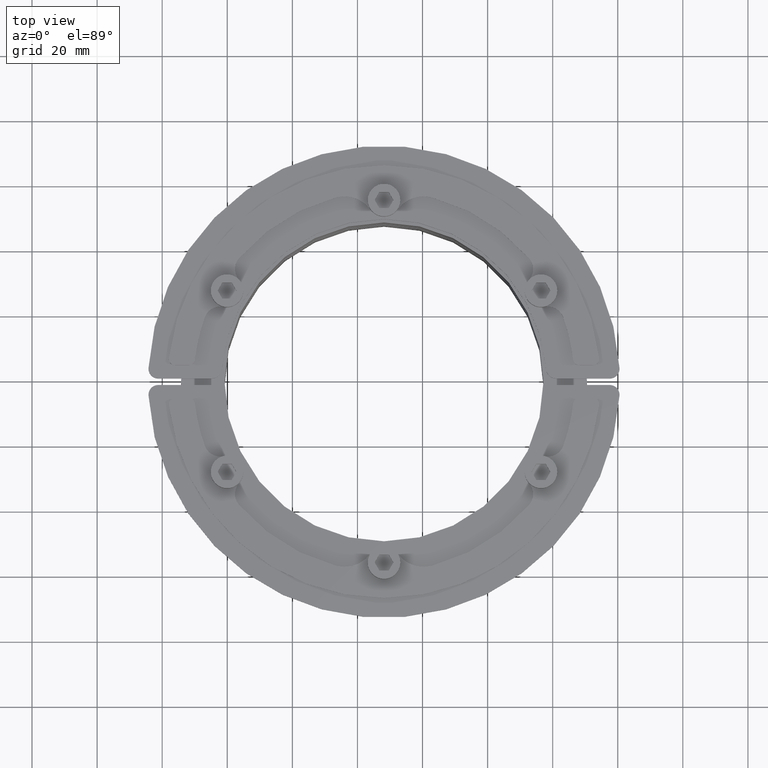
[diagram: clean part render]
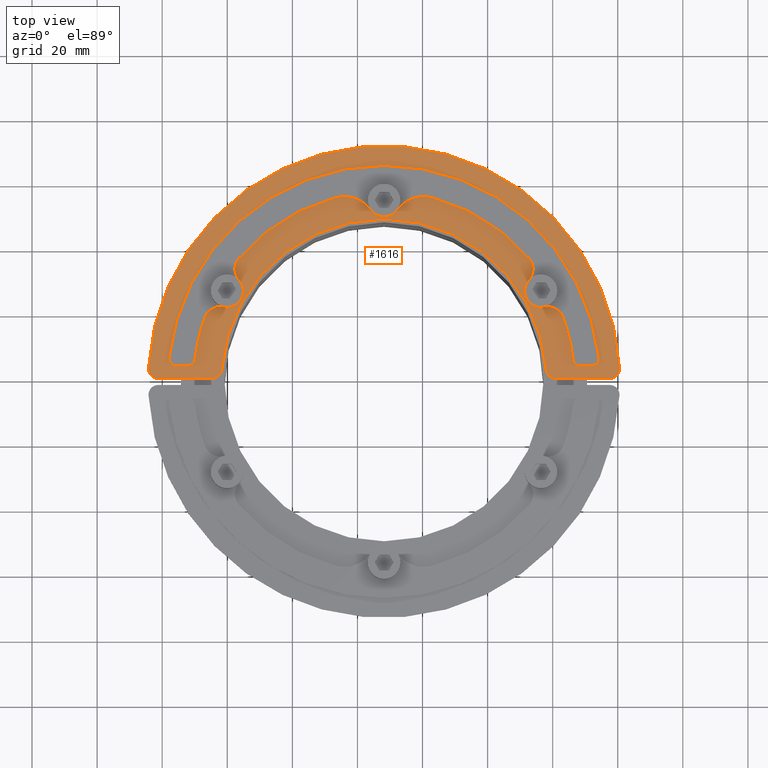
[diagram: same view with one face highlighted and labeled with its STEP entity id]
A machine part, top view. The second image highlights one B-rep face of the part: STEP entity #1616.
In plain terms, the highlighted planar face has unit normal (0, 0, 1).
Its self-contained STEP definition (entity closure, byte-faithful):
#152=CARTESIAN_POINT('',(-92.651256792387585,-23.695328694911552,1.250000000000000));
#153=VERTEX_POINT('',#152);
#162=CARTESIAN_POINT('',(-92.646283983996057,-23.522666824407956,1.250000000000000));
#163=VERTEX_POINT('',#162);
#164=CARTESIAN_POINT('',(-89.651256792387585,-23.695328694911552,1.250000000000000));
#165=DIRECTION('',(0.0,0.0,-1.0));
#166=DIRECTION('',(1.0,0.0,0.0));
#167=AXIS2_PLACEMENT_3D('',#164,#165,#166);
#168=CIRCLE('',#167,3.0);
#169=EDGE_CURVE('',#153,#163,#168,.T.);
#196=CARTESIAN_POINT('',(52.118336418805484,-23.695328694911552,1.250000000000000));
#197=VERTEX_POINT('',#196);
#213=CARTESIAN_POINT('',(52.113363610413984,-23.522666824407956,1.250000000000000));
#214=VERTEX_POINT('',#213);
#221=CARTESIAN_POINT('',(49.118336418805484,-23.695328694911552,1.250000000000000));
#222=DIRECTION('',(0.0,0.0,-1.0));
#223=DIRECTION('',(1.0,0.0,0.0));
#224=AXIS2_PLACEMENT_3D('',#221,#222,#223);
#225=CIRCLE('',#224,3.0);
#226=EDGE_CURVE('',#214,#197,#225,.T.);
#236=CARTESIAN_POINT('',(45.852569749726221,-20.695328694911503,1.250000000000000));
#237=VERTEX_POINT('',#236);
#246=CARTESIAN_POINT('',(45.840756724501929,-20.478274431345774,1.250000000000000));
#247=VERTEX_POINT('',#246);
#248=CARTESIAN_POINT('',(43.852569749726158,-20.695328694911503,1.250000000000000));
#249=DIRECTION('',(0.0,0.0,-1.0));
#250=DIRECTION('',(1.0,0.0,0.0));
#251=AXIS2_PLACEMENT_3D('',#248,#249,#250);
#252=CIRCLE('',#251,2.000000000000065);
#253=EDGE_CURVE('',#247,#237,#252,.T.);
#280=CARTESIAN_POINT('',(-86.385490123308287,-20.695328694911503,1.250000000000000));
#281=VERTEX_POINT('',#280);
#297=CARTESIAN_POINT('',(-86.373677098084059,-20.478274431345660,1.250000000000000));
#298=VERTEX_POINT('',#297);
#305=CARTESIAN_POINT('',(-84.385490123308287,-20.695328694911503,1.250000000000000));
#306=DIRECTION('',(0.0,0.0,-1.0));
#307=DIRECTION('',(1.0,0.0,0.0));
#308=AXIS2_PLACEMENT_3D('',#305,#306,#307);
#309=CIRCLE('',#308,2.0);
#310=EDGE_CURVE('',#281,#298,#309,.T.);
#320=CARTESIAN_POINT('',(-63.505050148563683,0.158476372816826,1.250000000000000));
#321=VERTEX_POINT('',#320);
#330=CARTESIAN_POINT('',(-64.800906526783947,3.516946266865139,1.250000000000000));
#331=VERTEX_POINT('',#330);
#332=CARTESIAN_POINT('',(-68.505050148563683,0.158476372816827,1.250000000000000));
#333=DIRECTION('',(0.0,0.0,-1.0));
#334=DIRECTION('',(1.0,0.0,0.0));
#335=AXIS2_PLACEMENT_3D('',#332,#333,#334);
#336=CIRCLE('',#335,5.0);
#337=EDGE_CURVE('',#331,#321,#336,.T.);
#364=CARTESIAN_POINT('',(-66.096762905004212,6.875416160913339,1.250000000000000));
#365=VERTEX_POINT('',#364);
#380=CARTESIAN_POINT('',(-61.096762905004212,6.875416160913337,1.250000000000000));
#381=DIRECTION('',(0.0,0.0,1.0));
#382=DIRECTION('',(1.0,0.0,0.0));
#383=AXIS2_PLACEMENT_3D('',#380,#381,#382);
#384=CIRCLE('',#383,5.0);
#385=EDGE_CURVE('',#365,#331,#384,.T.);
#395=CARTESIAN_POINT('',(25.566235545238428,6.872589657528909,1.250000000000000));
#396=VERTEX_POINT('',#395);
#405=CARTESIAN_POINT('',(24.268210287022143,3.511729200563414,1.250000000000000));
#406=VERTEX_POINT('',#405);
#407=CARTESIAN_POINT('',(20.566235545238428,6.872589657528911,1.250000000000000));
#408=DIRECTION('',(0.0,0.0,1.0));
#409=DIRECTION('',(1.0,0.0,0.0));
#410=AXIS2_PLACEMENT_3D('',#407,#408,#409);
#411=CIRCLE('',#410,5.0);
#412=EDGE_CURVE('',#406,#396,#411,.T.);
#439=CARTESIAN_POINT('',(22.970185028806085,0.150868743597917,1.250000000000000));
#440=VERTEX_POINT('',#439);
#455=CARTESIAN_POINT('',(27.970185028806085,0.150868743597917,1.250000000000000));
#456=DIRECTION('',(0.0,0.0,-1.0));
#457=DIRECTION('',(1.0,0.0,0.0));
#458=AXIS2_PLACEMENT_3D('',#455,#456,#457);
#459=CIRCLE('',#458,5.0);
#460=EDGE_CURVE('',#440,#406,#459,.T.);
#679=CARTESIAN_POINT('',(29.029295351828281,-4.735672499824441,1.250000000000000));
#680=VERTEX_POINT('',#679);
#687=CARTESIAN_POINT('',(34.794467904910320,-7.933137579539798,1.250000000000000));
#688=VERTEX_POINT('',#687);
#689=CARTESIAN_POINT('',(30.088405674850478,-9.622213743246798,1.250000000000000));
#690=DIRECTION('',(0.0,0.0,1.0));
#691=DIRECTION('',(1.0,0.0,0.0));
#692=AXIS2_PLACEMENT_3D('',#689,#690,#691);
#693=CIRCLE('',#692,5.0);
#694=EDGE_CURVE('',#688,#680,#693,.T.);
#711=CARTESIAN_POINT('',(27.970185028806085,0.150868743597917,1.250000000000000));
#712=DIRECTION('',(0.0,0.0,-1.0));
#713=DIRECTION('',(1.0,0.0,0.0));
#714=AXIS2_PLACEMENT_3D('',#711,#712,#713);
#715=CIRCLE('',#714,5.0);
#716=EDGE_CURVE('',#680,#440,#715,.T.);
#744=CARTESIAN_POINT('',(24.381452234750654,10.104326282327852,1.250000000000000));
#745=VERTEX_POINT('',#744);
#752=CARTESIAN_POINT('',(20.566235545238428,6.872589657528911,1.250000000000000));
#753=DIRECTION('',(0.0,0.0,1.0));
#754=DIRECTION('',(1.0,0.0,0.0));
#755=AXIS2_PLACEMENT_3D('',#752,#753,#754);
#756=CIRCLE('',#755,5.0);
#757=EDGE_CURVE('',#396,#745,#756,.T.);
#776=CARTESIAN_POINT('',(-5.580428210819731,28.931259272232857,1.250000000000000));
#777=VERTEX_POINT('',#776);
#784=CARTESIAN_POINT('',(-20.266460186791065,-27.695328694911503,1.250000000000000));
#785=DIRECTION('',(0.0,0.0,1.0));
#786=DIRECTION('',(1.0,0.0,0.0));
#787=AXIS2_PLACEMENT_3D('',#784,#785,#786);
#788=CIRCLE('',#787,58.500000000000000);
#789=EDGE_CURVE('',#745,#777,#788,.T.);
#809=CARTESIAN_POINT('',(-16.211671151066881,25.086947751849145,1.250000000000000));
#810=VERTEX_POINT('',#809);
#817=CARTESIAN_POINT('',(-8.090861027225072,19.251500645370577,1.250000000000000));
#818=DIRECTION('',(0.0,0.0,1.0));
#819=DIRECTION('',(1.0,0.0,0.0));
#820=AXIS2_PLACEMENT_3D('',#817,#818,#819);
#821=CIRCLE('',#820,10.0);
#822=EDGE_CURVE('',#777,#810,#821,.T.);
#842=CARTESIAN_POINT('',(-24.331892825683568,25.086129019755042,1.250000000000000));
#843=VERTEX_POINT('',#842);
#850=CARTESIAN_POINT('',(-20.272076212987727,28.004671305088429,1.250000000000000));
#851=DIRECTION('',(0.0,0.0,-1.0));
#852=DIRECTION('',(1.0,0.0,0.0));
#853=AXIS2_PLACEMENT_3D('',#850,#851,#852);
#854=CIRCLE('',#853,5.0);
#855=EDGE_CURVE('',#810,#843,#854,.T.);
#875=CARTESIAN_POINT('',(-34.963910765360325,28.928296643727087,1.250000000000000));
#876=VERTEX_POINT('',#875);
#883=CARTESIAN_POINT('',(-32.451526051075021,19.249044449088039,1.250000000000000));
#884=DIRECTION('',(0.0,0.0,1.0));
#885=DIRECTION('',(1.0,0.0,0.0));
#886=AXIS2_PLACEMENT_3D('',#883,#884,#885);
#887=CIRCLE('',#886,10.0);
#888=EDGE_CURVE('',#843,#876,#887,.T.);
#908=CARTESIAN_POINT('',(-64.913601466282458,10.105237115260357,1.250000000000000));
#909=VERTEX_POINT('',#908);
#916=CARTESIAN_POINT('',(-20.266460186791065,-27.695328694911503,1.250000000000000));
#917=DIRECTION('',(0.0,0.0,1.0));
#918=DIRECTION('',(1.0,0.0,0.0));
#919=AXIS2_PLACEMENT_3D('',#916,#917,#918);
#920=CIRCLE('',#919,58.500000000000000);
#921=EDGE_CURVE('',#876,#909,#920,.T.);
#933=CARTESIAN_POINT('',(-61.096762905004212,6.875416160913337,1.250000000000000));
#934=DIRECTION('',(0.0,0.0,1.0));
#935=DIRECTION('',(1.0,0.0,0.0));
#936=AXIS2_PLACEMENT_3D('',#933,#934,#935);
#937=CIRCLE('',#936,5.0);
#938=EDGE_CURVE('',#909,#365,#937,.T.);
#966=CARTESIAN_POINT('',(-69.561991174850746,-4.728534540507448,1.250000000000000));
#967=VERTEX_POINT('',#966);
#974=CARTESIAN_POINT('',(-68.505050148563683,0.158476372816827,1.250000000000000));
#975=DIRECTION('',(0.0,0.0,-1.0));
#976=DIRECTION('',(1.0,0.0,0.0));
#977=AXIS2_PLACEMENT_3D('',#974,#975,#976);
#978=CIRCLE('',#977,5.0);
#979=EDGE_CURVE('',#321,#967,#978,.T.);
#998=CARTESIAN_POINT('',(-75.324770707151529,-7.925846085506587,1.250000000000000));
#999=VERTEX_POINT('',#998);
#1006=CARTESIAN_POINT('',(-70.618932201137810,-9.615545453831837,1.250000000000000));
#1007=DIRECTION('',(0.0,0.0,1.0));
#1008=DIRECTION('',(1.0,0.0,0.0));
#1009=AXIS2_PLACEMENT_3D('',#1006,#1007,#1008);
#1010=CIRCLE('',#1009,5.0);
#1011=EDGE_CURVE('',#967,#999,#1010,.T.);
#1031=CARTESIAN_POINT('',(-78.373569228341140,-20.926733653589288,1.250000000000000));
#1032=VERTEX_POINT('',#1031);
#1039=CARTESIAN_POINT('',(-20.266460186791065,-27.695328694911503,1.250000000000000));
#1040=DIRECTION('',(0.0,0.0,1.0));
#1041=DIRECTION('',(1.0,0.0,0.0));
#1042=AXIS2_PLACEMENT_3D('',#1039,#1040,#1041);
#1043=CIRCLE('',#1042,58.500000000000000);
#1044=EDGE_CURVE('',#999,#1032,#1043,.T.);
#1064=CARTESIAN_POINT('',(-80.360137058821479,-22.695328694911503,1.250000000000000));
#1065=VERTEX_POINT('',#1064);
#1072=CARTESIAN_POINT('',(-80.360137058821479,-20.695328694911503,1.250000000000000));
#1073=DIRECTION('',(0.0,0.0,-1.0));
#1074=DIRECTION('',(1.0,0.0,0.0));
#1075=AXIS2_PLACEMENT_3D('',#1072,#1073,#1074);
#1076=CIRCLE('',#1075,2.0);
#1077=EDGE_CURVE('',#1032,#1065,#1076,.T.);
#1096=CARTESIAN_POINT('',(-84.385490123308287,-22.695328694911503,1.250000000000000));
#1097=VERTEX_POINT('',#1096);
#1104=CARTESIAN_POINT('',(-80.360137058821479,-22.695328694911503,1.250000000000000));
#1105=DIRECTION('',(-1.0,0.0,0.0));
#1106=VECTOR('',#1105,4.025353064486808);
#1107=LINE('',#1104,#1106);
#1108=EDGE_CURVE('',#1065,#1097,#1107,.T.);
#1120=CARTESIAN_POINT('',(-84.385490123308287,-20.695328694911503,1.250000000000000));
#1121=DIRECTION('',(0.0,0.0,-1.0));
#1122=DIRECTION('',(1.0,0.0,0.0));
#1123=AXIS2_PLACEMENT_3D('',#1120,#1121,#1122);
#1124=CIRCLE('',#1123,2.0);
#1125=EDGE_CURVE('',#1097,#281,#1124,.T.);
#1151=CARTESIAN_POINT('',(-20.266460186791065,-27.695328694911503,1.250000000000000));
#1152=DIRECTION('',(0.0,0.0,-1.0));
#1153=DIRECTION('',(1.0,0.0,0.0));
#1154=AXIS2_PLACEMENT_3D('',#1151,#1152,#1153);
#1155=CIRCLE('',#1154,66.500000000000000);
#1156=EDGE_CURVE('',#298,#247,#1155,.T.);
#1177=CARTESIAN_POINT('',(43.852569749726158,-22.695328694911503,1.250000000000000));
#1178=VERTEX_POINT('',#1177);
#1185=CARTESIAN_POINT('',(43.852569749726158,-20.695328694911503,1.250000000000000));
#1186=DIRECTION('',(0.0,0.0,-1.0));
#1187=DIRECTION('',(1.0,0.0,0.0));
#1188=AXIS2_PLACEMENT_3D('',#1185,#1186,#1187);
#1189=CIRCLE('',#1188,2.000000000000065);
#1190=EDGE_CURVE('',#237,#1178,#1189,.T.);
#1208=CARTESIAN_POINT('',(39.827216685239350,-22.695328694911503,1.250000000000000));
#1209=VERTEX_POINT('',#1208);
#1216=CARTESIAN_POINT('',(43.852569749726158,-22.695328694911503,1.250000000000000));
#1217=DIRECTION('',(-1.0,0.0,0.0));
#1218=VECTOR('',#1217,4.025353064486808);
#1219=LINE('',#1216,#1218);
#1220=EDGE_CURVE('',#1178,#1209,#1219,.T.);
#1240=CARTESIAN_POINT('',(37.840648854759124,-20.926733653589288,1.250000000000000));
#1241=VERTEX_POINT('',#1240);
#1248=CARTESIAN_POINT('',(39.827216685239350,-20.695328694911503,1.250000000000000));
#1249=DIRECTION('',(0.0,0.0,-1.0));
#1250=DIRECTION('',(1.0,0.0,0.0));
#1251=AXIS2_PLACEMENT_3D('',#1248,#1249,#1250);
#1252=CIRCLE('',#1251,2.0);
#1253=EDGE_CURVE('',#1209,#1241,#1252,.T.);
#1272=CARTESIAN_POINT('',(-20.266460186791065,-27.695328694911503,1.250000000000000));
#1273=DIRECTION('',(0.0,0.0,1.0));
#1274=DIRECTION('',(1.0,0.0,0.0));
#1275=AXIS2_PLACEMENT_3D('',#1272,#1273,#1274);
#1276=CIRCLE('',#1275,58.500000000000000);
#1277=EDGE_CURVE('',#1241,#688,#1276,.T.);
#1334=CARTESIAN_POINT('',(-20.266460186791051,-27.695328694911552,1.250000000000000));
#1335=DIRECTION('',(0.0,0.0,-1.0));
#1336=DIRECTION('',(1.0,0.0,0.0));
#1337=AXIS2_PLACEMENT_3D('',#1334,#1335,#1336);
#1338=CIRCLE('',#1337,72.500000000000000);
#1339=EDGE_CURVE('',#163,#214,#1338,.T.);
#1359=CARTESIAN_POINT('',(49.118336418805484,-26.695328694911552,1.250000000000000));
#1360=VERTEX_POINT('',#1359);
#1361=CARTESIAN_POINT('',(49.118336418805484,-23.695328694911552,1.250000000000000));
#1362=DIRECTION('',(0.0,0.0,-1.0));
#1363=DIRECTION('',(1.0,0.0,0.0));
#1364=AXIS2_PLACEMENT_3D('',#1361,#1362,#1363);
#1365=CIRCLE('',#1364,3.0);
#1366=EDGE_CURVE('',#197,#1360,#1365,.T.);
#1391=CARTESIAN_POINT('',(32.582380860104195,-26.695328694911552,1.250000000000000));
#1392=VERTEX_POINT('',#1391);
#1393=CARTESIAN_POINT('',(49.118336418805484,-26.695328694911552,1.250000000000000));
#1394=DIRECTION('',(-1.0,0.0,0.0));
#1395=VECTOR('',#1394,16.535955558701289);
#1396=LINE('',#1393,#1395);
#1397=EDGE_CURVE('',#1360,#1392,#1396,.T.);
#1422=CARTESIAN_POINT('',(29.590937027261077,-23.921743789251174,1.250000000000000));
#1423=VERTEX_POINT('',#1422);
#1424=CARTESIAN_POINT('',(32.582380860104195,-23.695328694911552,1.250000000000000));
#1425=DIRECTION('',(0.0,0.0,-1.0));
#1426=DIRECTION('',(1.0,0.0,0.0));
#1427=AXIS2_PLACEMENT_3D('',#1424,#1425,#1426);
#1428=CIRCLE('',#1427,3.0);
#1429=EDGE_CURVE('',#1392,#1423,#1428,.T.);
#1455=CARTESIAN_POINT('',(-70.123857400843178,-23.921743789251174,1.250000000000000));
#1456=VERTEX_POINT('',#1455);
#1457=CARTESIAN_POINT('',(-20.266460186791051,-27.695328694911552,1.250000000000000));
#1458=DIRECTION('',(0.0,0.0,1.0));
#1459=DIRECTION('',(1.0,0.0,0.0));
#1460=AXIS2_PLACEMENT_3D('',#1457,#1458,#1459);
#1461=CIRCLE('',#1460,50.0);
#1462=EDGE_CURVE('',#1423,#1456,#1461,.T.);
#1488=CARTESIAN_POINT('',(-73.115301233686296,-26.695328694911552,1.250000000000000));
#1489=VERTEX_POINT('',#1488);
#1490=CARTESIAN_POINT('',(-73.115301233686296,-23.695328694911552,1.250000000000000));
#1491=DIRECTION('',(0.0,0.0,-1.0));
#1492=DIRECTION('',(1.0,0.0,0.0));
#1493=AXIS2_PLACEMENT_3D('',#1490,#1491,#1492);
#1494=CIRCLE('',#1493,3.0);
#1495=EDGE_CURVE('',#1456,#1489,#1494,.T.);
#1521=CARTESIAN_POINT('',(-89.651256792387585,-26.695328694911552,1.250000000000000));
#1522=VERTEX_POINT('',#1521);
#1523=CARTESIAN_POINT('',(-73.115301233686296,-26.695328694911552,1.250000000000000));
#1524=DIRECTION('',(-1.0,0.0,0.0));
#1525=VECTOR('',#1524,16.535955558701289);
#1526=LINE('',#1523,#1525);
#1527=EDGE_CURVE('',#1489,#1522,#1526,.T.);
#1561=CARTESIAN_POINT('',(-89.651256792387585,-23.695328694911552,1.250000000000000));
#1562=DIRECTION('',(0.0,0.0,-1.0));
#1563=DIRECTION('',(1.0,0.0,0.0));
#1564=AXIS2_PLACEMENT_3D('',#1561,#1562,#1563);
#1565=CIRCLE('',#1564,3.0);
#1566=EDGE_CURVE('',#1522,#153,#1565,.T.);
#1571=CARTESIAN_POINT('',(0.007060669662779,-2.959693082385693,1.250000000000000));
#1572=DIRECTION('',(0.0,0.0,1.0));
#1573=DIRECTION('',(1.0,0.0,0.0));
#1574=AXIS2_PLACEMENT_3D('',#1571,#1572,#1573);
#1575=PLANE('',#1574);
#1576=ORIENTED_EDGE('',*,*,#1339,.F.);
#1577=ORIENTED_EDGE('',*,*,#169,.F.);
#1578=ORIENTED_EDGE('',*,*,#1566,.F.);
#1579=ORIENTED_EDGE('',*,*,#1527,.F.);
#1580=ORIENTED_EDGE('',*,*,#1495,.F.);
#1581=ORIENTED_EDGE('',*,*,#1462,.F.);
#1582=ORIENTED_EDGE('',*,*,#1429,.F.);
#1583=ORIENTED_EDGE('',*,*,#1397,.F.);
#1584=ORIENTED_EDGE('',*,*,#1366,.F.);
#1585=ORIENTED_EDGE('',*,*,#226,.F.);
#1586=EDGE_LOOP('',(#1576,#1577,#1578,#1579,#1580,#1581,#1582,#1583,#1584,#1585));
#1587=FACE_OUTER_BOUND('',#1586,.T.);
#1588=ORIENTED_EDGE('',*,*,#694,.T.);
#1589=ORIENTED_EDGE('',*,*,#716,.T.);
#1590=ORIENTED_EDGE('',*,*,#460,.T.);
#1591=ORIENTED_EDGE('',*,*,#412,.T.);
#1592=ORIENTED_EDGE('',*,*,#757,.T.);
#1593=ORIENTED_EDGE('',*,*,#789,.T.);
#1594=ORIENTED_EDGE('',*,*,#822,.T.);
#1595=ORIENTED_EDGE('',*,*,#855,.T.);
#1596=ORIENTED_EDGE('',*,*,#888,.T.);
#1597=ORIENTED_EDGE('',*,*,#921,.T.);
#1598=ORIENTED_EDGE('',*,*,#938,.T.);
#1599=ORIENTED_EDGE('',*,*,#385,.T.);
#1600=ORIENTED_EDGE('',*,*,#337,.T.);
#1601=ORIENTED_EDGE('',*,*,#979,.T.);
#1602=ORIENTED_EDGE('',*,*,#1011,.T.);
#1603=ORIENTED_EDGE('',*,*,#1044,.T.);
#1604=ORIENTED_EDGE('',*,*,#1077,.T.);
#1605=ORIENTED_EDGE('',*,*,#1108,.T.);
#1606=ORIENTED_EDGE('',*,*,#1125,.T.);
#1607=ORIENTED_EDGE('',*,*,#310,.T.);
#1608=ORIENTED_EDGE('',*,*,#1156,.T.);
#1609=ORIENTED_EDGE('',*,*,#253,.T.);
#1610=ORIENTED_EDGE('',*,*,#1190,.T.);
#1611=ORIENTED_EDGE('',*,*,#1220,.T.);
#1612=ORIENTED_EDGE('',*,*,#1253,.T.);
#1613=ORIENTED_EDGE('',*,*,#1277,.T.);
#1614=EDGE_LOOP('',(#1588,#1589,#1590,#1591,#1592,#1593,#1594,#1595,#1596,#1597,#1598,#1599,#1600,#1601,#1602,#1603,#1604,#1605,#1606,#1607,#1608,#1609,#1610,#1611,#1612,#1613));
#1615=FACE_BOUND('',#1614,.T.);
#1616=ADVANCED_FACE('',(#1587,#1615),#1575,.T.);